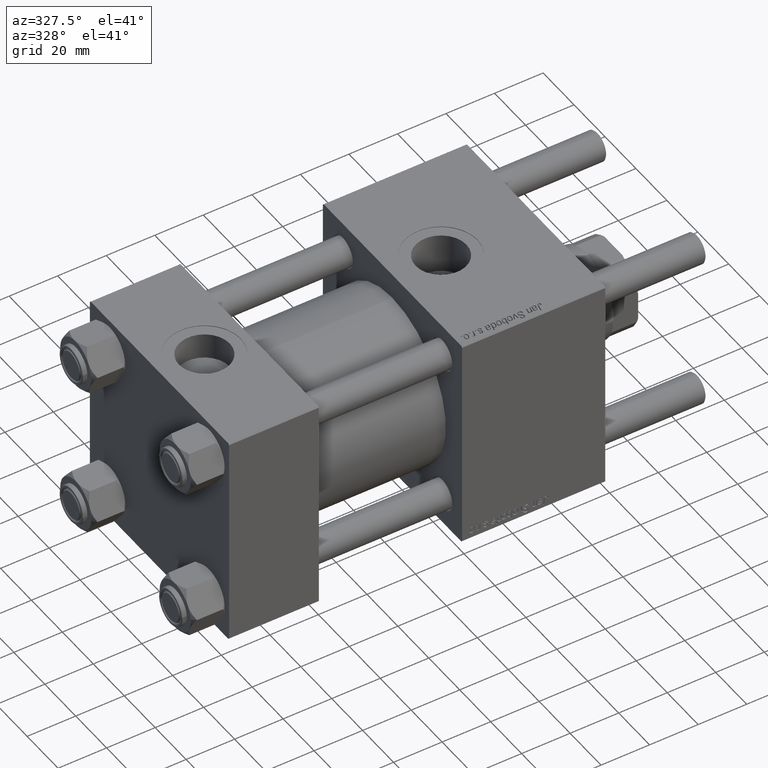
[diagram: clean part render]
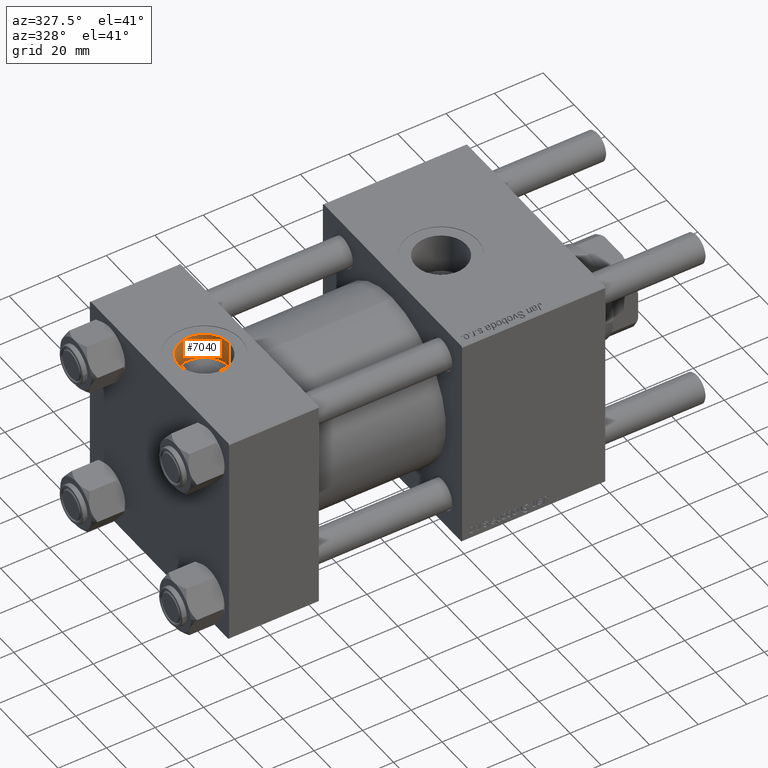
[diagram: same view with one face highlighted and labeled with its STEP entity id]
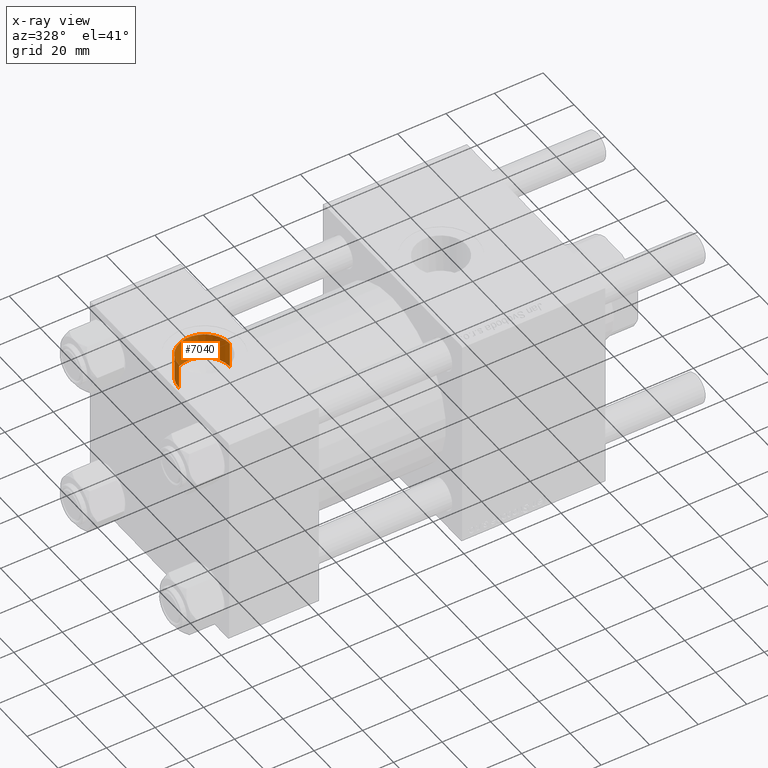
[diagram: x-ray of the same camera — body ghosted, the highlighted face saturated]
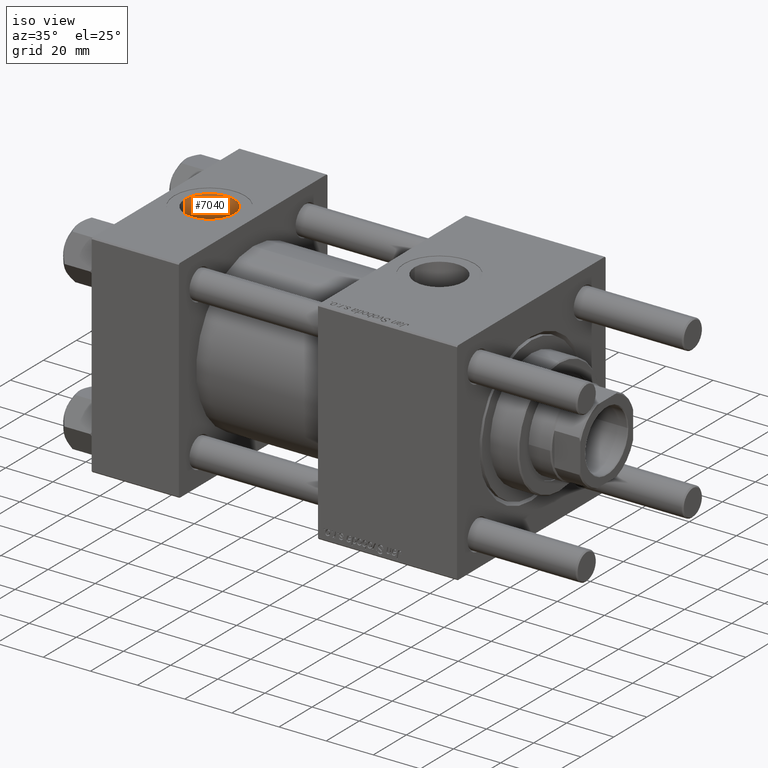
[diagram: same view with one face highlighted and labeled with its STEP entity id]
A machine part, auxiliary view. The second image highlights one B-rep face of the part: STEP entity #7040.
The next image is the same camera in x-ray: the body ghosted, the highlighted face saturated — about 0% of this face is hidden behind the body in this view.
A second angle (iso view) of the same face is appended — the face is thin or edge-on in the first view.
In plain terms, the highlighted cylindrical surface (edge-blend (fillet) strip) has radius 10.48 mm, axis along (0, 0, 1).
Its self-contained STEP definition (entity closure, byte-faithful):
#492 = CARTESIAN_POINT ( 'NONE',  ( 18.50000000000000000, -8.673617379884038628E-15, 34.20000000000000995 ) ) ;
#1871 = VERTEX_POINT ( 'NONE', #25351 ) ;
#2667 = EDGE_CURVE ( 'NONE', #53839, #13257, #55300, .T. ) ;
#4778 = DIRECTION ( 'NONE',  ( 1.000000000000000000, 0.000000000000000000, 0.000000000000000000 ) ) ;
#6939 = CIRCLE ( 'NONE', #33403, 10.48000000000000043 ) ;
#7040 = ADVANCED_FACE ( 'NONE', ( #37702 ), #55715, .F. ) ;
#11165 = ORIENTED_EDGE ( 'NONE', *, *, #23300, .F. ) ;
#11528 = AXIS2_PLACEMENT_3D ( 'NONE', #492, #28561, #31841 ) ;
#13257 = VERTEX_POINT ( 'NONE', #52313 ) ;
#13950 = DIRECTION ( 'NONE',  ( 0.000000000000000000, 0.000000000000000000, 1.000000000000000000 ) ) ;
#17602 = VECTOR ( 'NONE', #39256, 1000.000000000000000 ) ;
#18693 = CARTESIAN_POINT ( 'NONE',  ( 18.50000000000000000, -8.673617379884038628E-15, 44.80000000000000426 ) ) ;
#23300 = EDGE_CURVE ( 'NONE', #55156, #53839, #37354, .T. ) ;
#24879 = ORIENTED_EDGE ( 'NONE', *, *, #36723, .T. ) ;
#25351 = CARTESIAN_POINT ( 'NONE',  ( 28.98000000000000043, -8.673617379884038628E-15, 44.80000000000000426 ) ) ;
#27439 = VECTOR ( 'NONE', #29006, 1000.000000000000000 ) ;
#28561 = DIRECTION ( 'NONE',  ( -0.000000000000000000, -0.000000000000000000, 1.000000000000000000 ) ) ;
#28653 = CARTESIAN_POINT ( 'NONE',  ( 8.019999999999999574, -7.390187534377611561E-15, 34.20000000000000995 ) ) ;
#29006 = DIRECTION ( 'NONE',  ( -0.000000000000000000, -0.000000000000000000, 1.000000000000000000 ) ) ;
#29243 = CARTESIAN_POINT ( 'NONE',  ( 28.98000000000000043, -8.673617379884038628E-15, 34.20000000000000995 ) ) ;
#31209 = CARTESIAN_POINT ( 'NONE',  ( 28.98000000000000043, -8.673617379884038628E-15, 34.20000000000000995 ) ) ;
#31841 = DIRECTION ( 'NONE',  ( 1.000000000000000000, 0.000000000000000000, 0.000000000000000000 ) ) ;
#32900 = CARTESIAN_POINT ( 'NONE',  ( 18.50000000000000000, -8.673617379884038628E-15, 34.20000000000000995 ) ) ;
#33403 = AXIS2_PLACEMENT_3D ( 'NONE', #18693, #13950, #4778 ) ;
#36723 = EDGE_CURVE ( 'NONE', #1871, #13257, #6939, .T. ) ;
#37354 = CIRCLE ( 'NONE', #54350, 10.48000000000000043 ) ;
#37702 = FACE_OUTER_BOUND ( 'NONE', #52458, .T. ) ;
#39256 = DIRECTION ( 'NONE',  ( -0.000000000000000000, -0.000000000000000000, 1.000000000000000000 ) ) ;
#39743 = ORIENTED_EDGE ( 'NONE', *, *, #2667, .F. ) ;
#41481 = DIRECTION ( 'NONE',  ( 1.000000000000000000, 0.000000000000000000, 0.000000000000000000 ) ) ;
#42680 = ORIENTED_EDGE ( 'NONE', *, *, #42690, .T. ) ;
#42690 = EDGE_CURVE ( 'NONE', #55156, #1871, #48118, .T. ) ;
#46197 = DIRECTION ( 'NONE',  ( 0.000000000000000000, 0.000000000000000000, 1.000000000000000000 ) ) ;
#48118 = LINE ( 'NONE', #29243, #17602 ) ;
#52313 = CARTESIAN_POINT ( 'NONE',  ( 8.019999999999999574, -7.390187534377611561E-15, 44.80000000000000426 ) ) ;
#52458 = EDGE_LOOP ( 'NONE', ( #39743, #11165, #42680, #24879 ) ) ;
#53839 = VERTEX_POINT ( 'NONE', #28653 ) ;
#54350 = AXIS2_PLACEMENT_3D ( 'NONE', #32900, #46197, #41481 ) ;
#55156 = VERTEX_POINT ( 'NONE', #31209 ) ;
#55300 = LINE ( 'NONE', #55586, #27439 ) ;
#55586 = CARTESIAN_POINT ( 'NONE',  ( 8.019999999999999574, -7.390187534377611561E-15, 34.20000000000000995 ) ) ;
#55715 = CYLINDRICAL_SURFACE ( 'NONE', #11528, 10.48000000000000043 ) ;